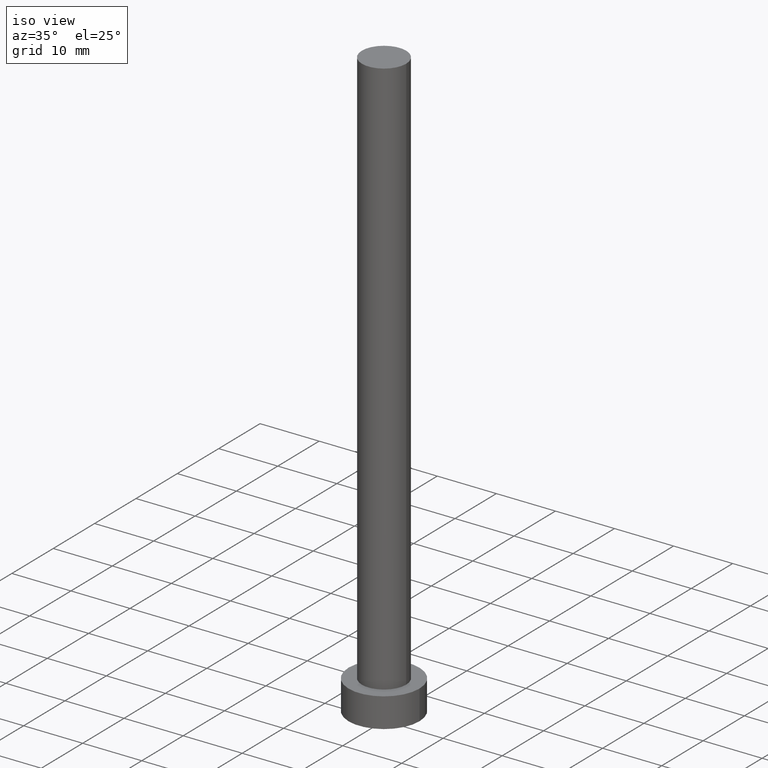
[diagram: clean part render]
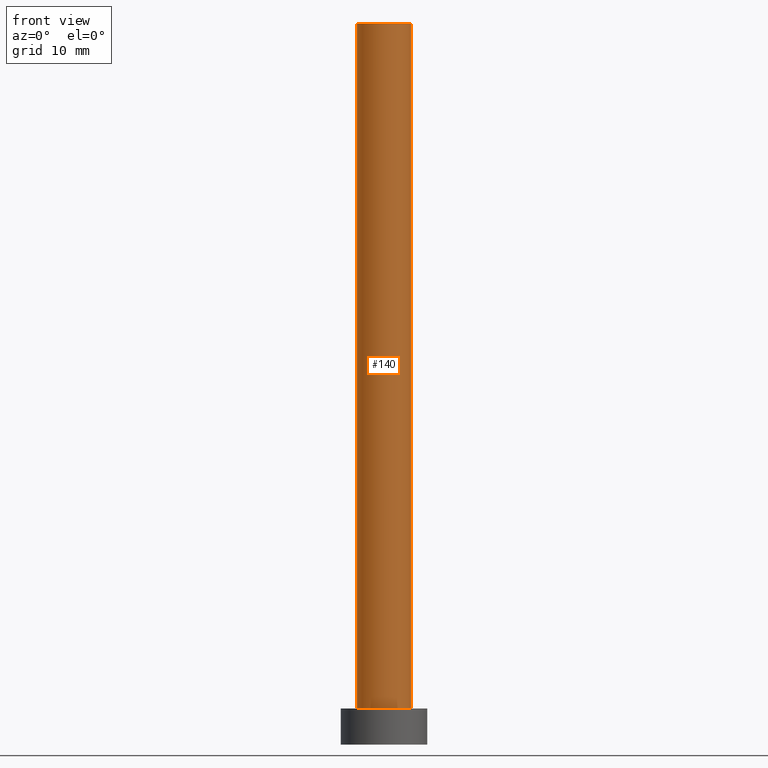
[diagram: tour spotlight — one face highlighted and labeled with its STEP entity id]
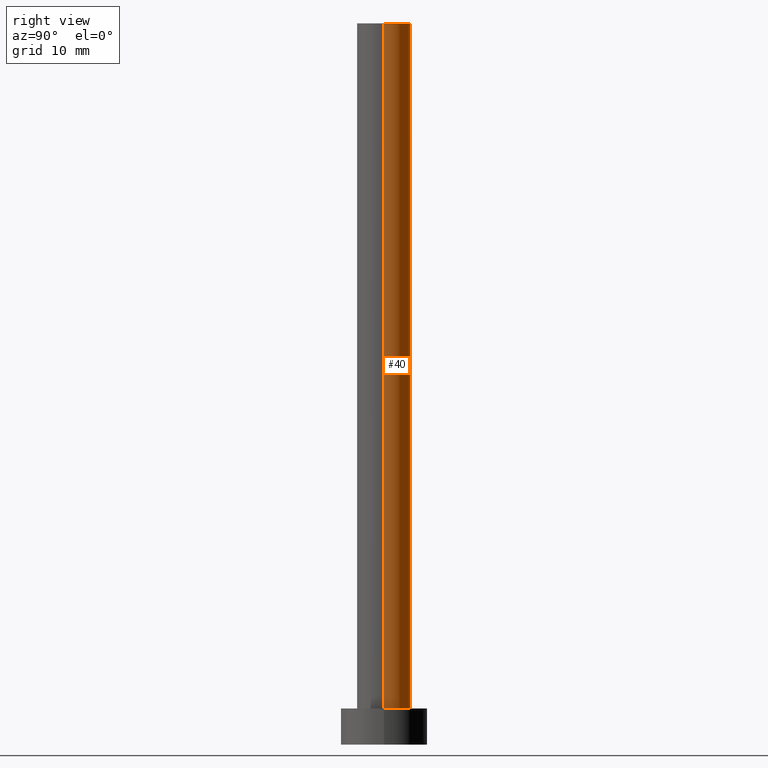
[diagram: tour spotlight — one face highlighted and labeled with its STEP entity id]
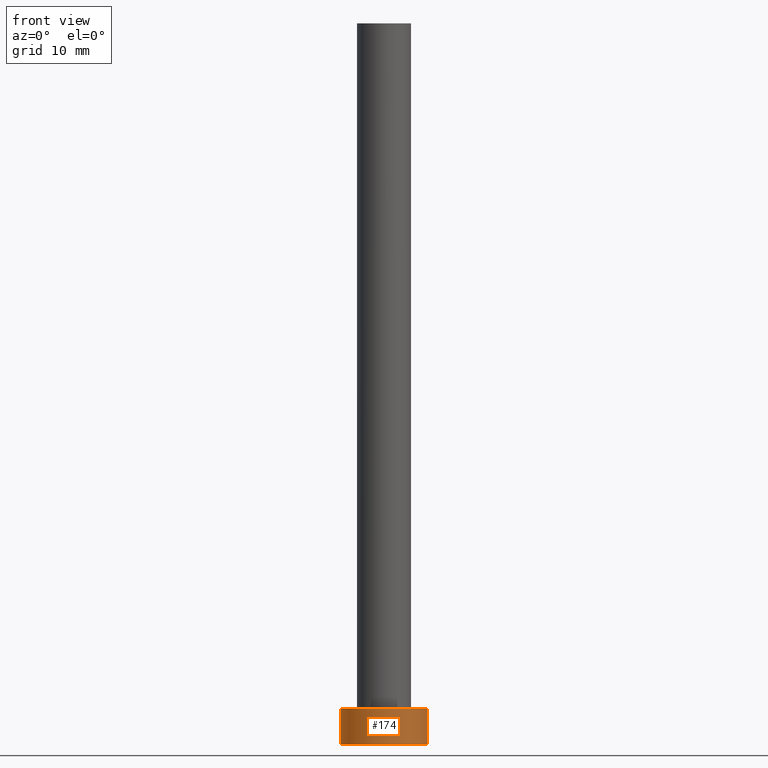
[diagram: tour spotlight — one face highlighted and labeled with its STEP entity id]
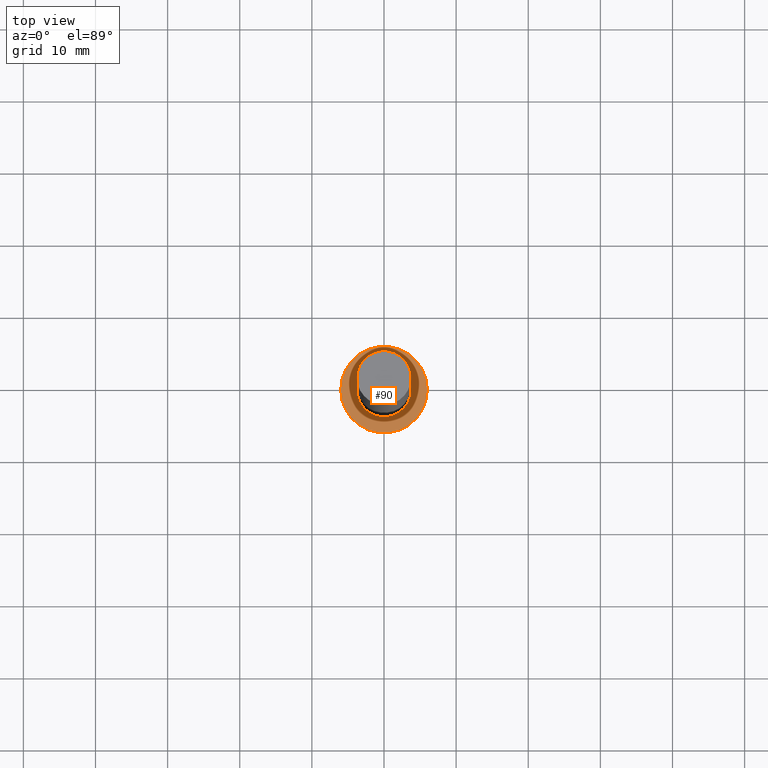
[diagram: tour spotlight — one face highlighted and labeled with its STEP entity id]
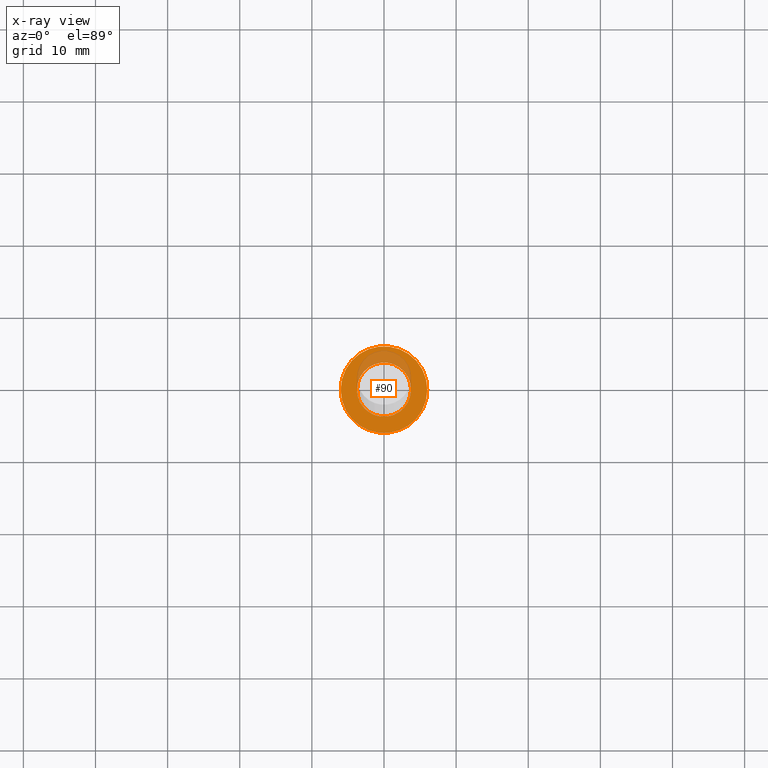
[diagram: x-ray of the same camera — body ghosted, this tour face saturated]
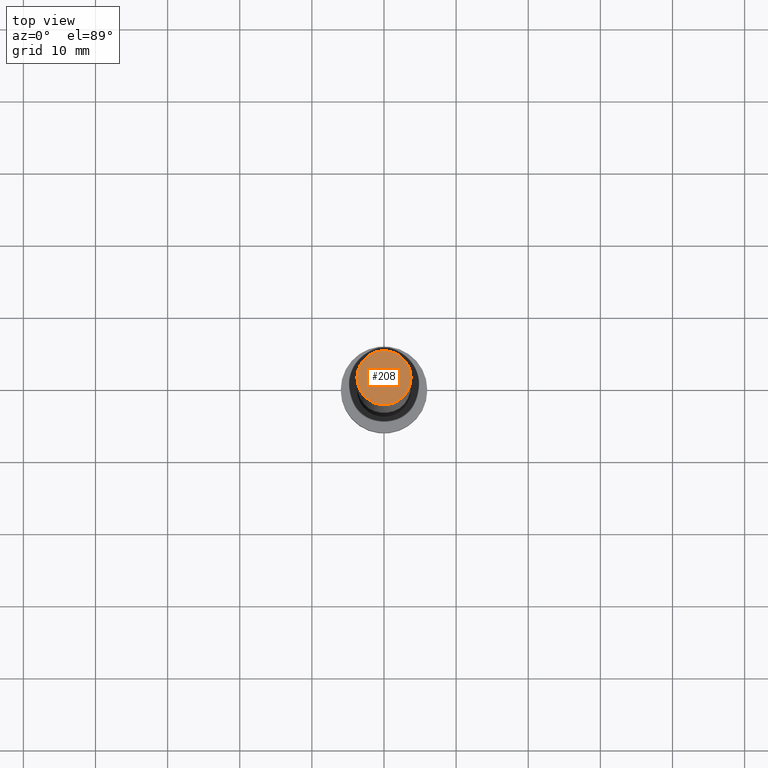
[diagram: tour spotlight — one face highlighted and labeled with its STEP entity id]
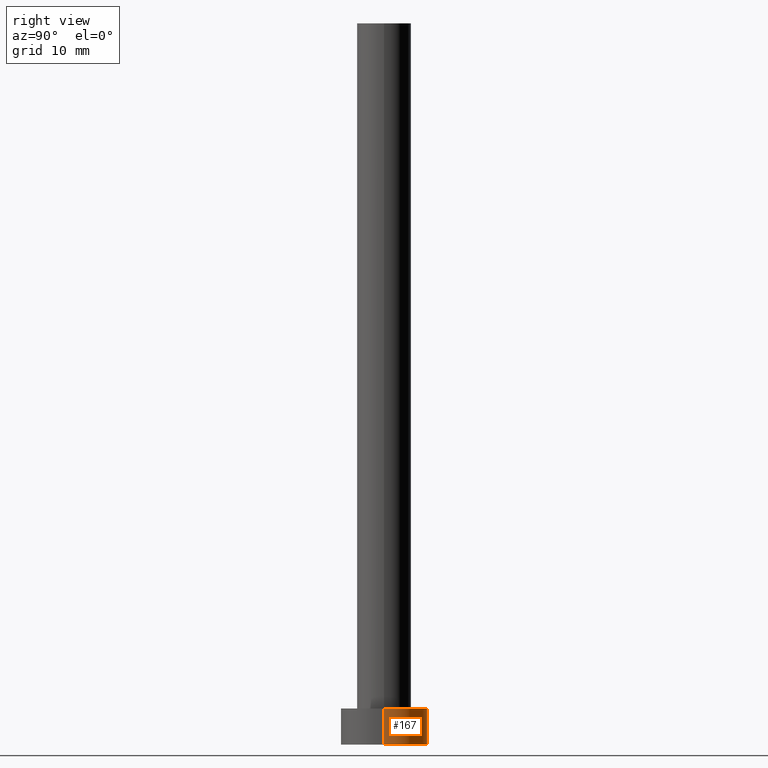
[diagram: tour spotlight — one face highlighted and labeled with its STEP entity id]
A machine part: a face-by-face anatomy tour. The part has 7 B-rep faces; the first image is the clean iso view, then the 6 largest visible faces are spotlighted one at a time (largest first), each with its STEP entity span.

Face 1 — front view, entity #140. In plain terms, the highlighted cylindrical surface (edge-blend (fillet) strip) has radius 3.75 mm, axis along (-0, -0, -1).
Definition (entity closure, byte-faithful):
#6 = ORIENTED_EDGE ( 'NONE', *, *, #194, .F. ) ;
#7 = VECTOR ( 'NONE', #76, 1000.000000000000000 ) ;
#11 = AXIS2_PLACEMENT_3D ( 'NONE', #213, #215, #95 ) ;
#15 = AXIS2_PLACEMENT_3D ( 'NONE', #54, #25, #37 ) ;
#16 = CARTESIAN_POINT ( 'NONE',  ( -3.750000000000000000, 0.000000000000000000, 100.0000000000000000 ) ) ;
#21 = CARTESIAN_POINT ( 'NONE',  ( 3.750000000000000000, 4.592425496802573972E-16, 100.0000000000000000 ) ) ;
#22 = FACE_OUTER_BOUND ( 'NONE', #181, .T. ) ;
#24 = CIRCLE ( 'NONE', #15, 3.750000000000000000 ) ;
#25 = DIRECTION ( 'NONE',  ( 0.000000000000000000, 0.000000000000000000, 1.000000000000000000 ) ) ;
#37 = DIRECTION ( 'NONE',  ( 1.000000000000000000, 0.000000000000000000, 0.000000000000000000 ) ) ;
#38 = CARTESIAN_POINT ( 'NONE',  ( -3.750000000000000000, 0.000000000000000000, 5.000000000000000000 ) ) ;
#54 = CARTESIAN_POINT ( 'NONE',  ( 0.000000000000000000, 0.000000000000000000, 5.000000000000000000 ) ) ;
#58 = VERTEX_POINT ( 'NONE', #16 ) ;
#72 = ORIENTED_EDGE ( 'NONE', *, *, #84, .T. ) ;
#75 = LINE ( 'NONE', #93, #7 ) ;
#76 = DIRECTION ( 'NONE',  ( -0.000000000000000000, -0.000000000000000000, -1.000000000000000000 ) ) ;
#84 = EDGE_CURVE ( 'NONE', #239, #219, #24, .T. ) ;
#85 = DIRECTION ( 'NONE',  ( 1.000000000000000000, 0.000000000000000000, 0.000000000000000000 ) ) ;
#92 = CARTESIAN_POINT ( 'NONE',  ( -3.750000000000000000, 0.000000000000000000, 100.0000000000000000 ) ) ;
#93 = CARTESIAN_POINT ( 'NONE',  ( 3.750000000000000000, 4.592425496802573972E-16, 100.0000000000000000 ) ) ;
#95 = DIRECTION ( 'NONE',  ( -1.000000000000000000, 0.000000000000000000, 0.000000000000000000 ) ) ;
#107 = EDGE_CURVE ( 'NONE', #58, #239, #169, .T. ) ;
#116 = CARTESIAN_POINT ( 'NONE',  ( 0.000000000000000000, 0.000000000000000000, 100.0000000000000000 ) ) ;
#140 = ADVANCED_FACE ( 'NONE', ( #22 ), #234, .T. ) ;
#159 = DIRECTION ( 'NONE',  ( -0.000000000000000000, -0.000000000000000000, -1.000000000000000000 ) ) ;
#169 = LINE ( 'NONE', #92, #220 ) ;
#177 = ORIENTED_EDGE ( 'NONE', *, *, #253, .F. ) ;
#181 = EDGE_LOOP ( 'NONE', ( #6, #177, #192, #72 ) ) ;
#184 = VERTEX_POINT ( 'NONE', #21 ) ;
#192 = ORIENTED_EDGE ( 'NONE', *, *, #107, .T. ) ;
#194 = EDGE_CURVE ( 'NONE', #184, #219, #75, .T. ) ;
#198 = DIRECTION ( 'NONE',  ( 0.000000000000000000, 0.000000000000000000, 1.000000000000000000 ) ) ;
#213 = CARTESIAN_POINT ( 'NONE',  ( 0.000000000000000000, 0.000000000000000000, 100.0000000000000000 ) ) ;
#214 = CARTESIAN_POINT ( 'NONE',  ( 3.750000000000000000, 4.592425496802573972E-16, 5.000000000000000000 ) ) ;
#215 = DIRECTION ( 'NONE',  ( -0.000000000000000000, -0.000000000000000000, -1.000000000000000000 ) ) ;
#219 = VERTEX_POINT ( 'NONE', #214 ) ;
#220 = VECTOR ( 'NONE', #159, 1000.000000000000000 ) ;
#226 = CIRCLE ( 'NONE', #237, 3.750000000000000000 ) ;
#234 = CYLINDRICAL_SURFACE ( 'NONE', #11, 3.750000000000000000 ) ;
#237 = AXIS2_PLACEMENT_3D ( 'NONE', #116, #198, #85 ) ;
#239 = VERTEX_POINT ( 'NONE', #38 ) ;
#253 = EDGE_CURVE ( 'NONE', #58, #184, #226, .T. ) ;

Face 2 — right view, entity #40. In plain terms, the highlighted cylindrical surface (edge-blend (fillet) strip) has radius 3.75 mm, axis along (-0, -0, -1).
Definition (entity closure, byte-faithful):
#7 = VECTOR ( 'NONE', #76, 1000.000000000000000 ) ;
#14 = FACE_OUTER_BOUND ( 'NONE', #39, .T. ) ;
#16 = CARTESIAN_POINT ( 'NONE',  ( -3.750000000000000000, 0.000000000000000000, 100.0000000000000000 ) ) ;
#21 = CARTESIAN_POINT ( 'NONE',  ( 3.750000000000000000, 4.592425496802573972E-16, 100.0000000000000000 ) ) ;
#33 = DIRECTION ( 'NONE',  ( 0.000000000000000000, 0.000000000000000000, 1.000000000000000000 ) ) ;
#38 = CARTESIAN_POINT ( 'NONE',  ( -3.750000000000000000, 0.000000000000000000, 5.000000000000000000 ) ) ;
#39 = EDGE_LOOP ( 'NONE', ( #101, #138, #64, #47 ) ) ;
#40 = ADVANCED_FACE ( 'NONE', ( #14 ), #245, .T. ) ;
#47 = ORIENTED_EDGE ( 'NONE', *, *, #107, .F. ) ;
#50 = CARTESIAN_POINT ( 'NONE',  ( 0.000000000000000000, 0.000000000000000000, 100.0000000000000000 ) ) ;
#51 = CARTESIAN_POINT ( 'NONE',  ( 0.000000000000000000, 0.000000000000000000, 100.0000000000000000 ) ) ;
#58 = VERTEX_POINT ( 'NONE', #16 ) ;
#63 = EDGE_CURVE ( 'NONE', #184, #58, #190, .T. ) ;
#64 = ORIENTED_EDGE ( 'NONE', *, *, #109, .T. ) ;
#68 = AXIS2_PLACEMENT_3D ( 'NONE', #197, #131, #211 ) ;
#75 = LINE ( 'NONE', #93, #7 ) ;
#76 = DIRECTION ( 'NONE',  ( -0.000000000000000000, -0.000000000000000000, -1.000000000000000000 ) ) ;
#92 = CARTESIAN_POINT ( 'NONE',  ( -3.750000000000000000, 0.000000000000000000, 100.0000000000000000 ) ) ;
#93 = CARTESIAN_POINT ( 'NONE',  ( 3.750000000000000000, 4.592425496802573972E-16, 100.0000000000000000 ) ) ;
#101 = ORIENTED_EDGE ( 'NONE', *, *, #63, .F. ) ;
#107 = EDGE_CURVE ( 'NONE', #58, #239, #169, .T. ) ;
#109 = EDGE_CURVE ( 'NONE', #219, #239, #110, .T. ) ;
#110 = CIRCLE ( 'NONE', #68, 3.750000000000000000 ) ;
#124 = DIRECTION ( 'NONE',  ( -0.000000000000000000, -0.000000000000000000, -1.000000000000000000 ) ) ;
#128 = AXIS2_PLACEMENT_3D ( 'NONE', #50, #33, #248 ) ;
#130 = DIRECTION ( 'NONE',  ( -1.000000000000000000, 0.000000000000000000, 0.000000000000000000 ) ) ;
#131 = DIRECTION ( 'NONE',  ( 0.000000000000000000, 0.000000000000000000, 1.000000000000000000 ) ) ;
#133 = AXIS2_PLACEMENT_3D ( 'NONE', #51, #124, #130 ) ;
#138 = ORIENTED_EDGE ( 'NONE', *, *, #194, .T. ) ;
#159 = DIRECTION ( 'NONE',  ( -0.000000000000000000, -0.000000000000000000, -1.000000000000000000 ) ) ;
#169 = LINE ( 'NONE', #92, #220 ) ;
#184 = VERTEX_POINT ( 'NONE', #21 ) ;
#190 = CIRCLE ( 'NONE', #128, 3.750000000000000000 ) ;
#194 = EDGE_CURVE ( 'NONE', #184, #219, #75, .T. ) ;
#197 = CARTESIAN_POINT ( 'NONE',  ( 0.000000000000000000, 0.000000000000000000, 5.000000000000000000 ) ) ;
#211 = DIRECTION ( 'NONE',  ( 1.000000000000000000, 0.000000000000000000, 0.000000000000000000 ) ) ;
#214 = CARTESIAN_POINT ( 'NONE',  ( 3.750000000000000000, 4.592425496802573972E-16, 5.000000000000000000 ) ) ;
#219 = VERTEX_POINT ( 'NONE', #214 ) ;
#220 = VECTOR ( 'NONE', #159, 1000.000000000000000 ) ;
#239 = VERTEX_POINT ( 'NONE', #38 ) ;
#245 = CYLINDRICAL_SURFACE ( 'NONE', #133, 3.750000000000000000 ) ;
#248 = DIRECTION ( 'NONE',  ( 1.000000000000000000, 0.000000000000000000, 0.000000000000000000 ) ) ;

Face 3 — front view, entity #174. In plain terms, the highlighted cylindrical surface (partial cylindrical patch) has radius 6 mm, axis along (-0, -0, -1).
Definition (entity closure, byte-faithful):
#1 = LINE ( 'NONE', #251, #250 ) ;
#20 = CARTESIAN_POINT ( 'NONE',  ( 6.000000000000000888, 7.347880794884120722E-16, 5.000000000000000000 ) ) ;
#27 = VERTEX_POINT ( 'NONE', #49 ) ;
#36 = CYLINDRICAL_SURFACE ( 'NONE', #201, 6.000000000000000888 ) ;
#43 = VERTEX_POINT ( 'NONE', #207 ) ;
#44 = EDGE_CURVE ( 'NONE', #83, #27, #244, .T. ) ;
#49 = CARTESIAN_POINT ( 'NONE',  ( 6.000000000000000888, 7.347880794884120722E-16, 0.000000000000000000 ) ) ;
#57 = CARTESIAN_POINT ( 'NONE',  ( -6.000000000000000888, 0.000000000000000000, 0.000000000000000000 ) ) ;
#62 = ORIENTED_EDGE ( 'NONE', *, *, #44, .T. ) ;
#73 = EDGE_CURVE ( 'NONE', #43, #83, #1, .T. ) ;
#81 = ORIENTED_EDGE ( 'NONE', *, *, #73, .T. ) ;
#83 = VERTEX_POINT ( 'NONE', #57 ) ;
#91 = AXIS2_PLACEMENT_3D ( 'NONE', #153, #209, #246 ) ;
#98 = CARTESIAN_POINT ( 'NONE',  ( 0.000000000000000000, 0.000000000000000000, 5.000000000000000000 ) ) ;
#104 = EDGE_LOOP ( 'NONE', ( #142, #199, #81, #62 ) ) ;
#106 = VECTOR ( 'NONE', #231, 1000.000000000000000 ) ;
#112 = CARTESIAN_POINT ( 'NONE',  ( 6.000000000000000888, 7.347880794884120722E-16, 5.000000000000000000 ) ) ;
#115 = DIRECTION ( 'NONE',  ( 1.000000000000000000, 0.000000000000000000, 0.000000000000000000 ) ) ;
#118 = CIRCLE ( 'NONE', #157, 6.000000000000000888 ) ;
#132 = DIRECTION ( 'NONE',  ( -0.000000000000000000, -0.000000000000000000, -1.000000000000000000 ) ) ;
#142 = ORIENTED_EDGE ( 'NONE', *, *, #152, .F. ) ;
#152 = EDGE_CURVE ( 'NONE', #175, #27, #230, .T. ) ;
#153 = CARTESIAN_POINT ( 'NONE',  ( 0.000000000000000000, 0.000000000000000000, 0.000000000000000000 ) ) ;
#157 = AXIS2_PLACEMENT_3D ( 'NONE', #195, #254, #115 ) ;
#158 = EDGE_CURVE ( 'NONE', #43, #175, #118, .T. ) ;
#160 = FACE_OUTER_BOUND ( 'NONE', #104, .T. ) ;
#174 = ADVANCED_FACE ( 'NONE', ( #160 ), #36, .T. ) ;
#175 = VERTEX_POINT ( 'NONE', #20 ) ;
#193 = DIRECTION ( 'NONE',  ( -0.000000000000000000, -0.000000000000000000, -1.000000000000000000 ) ) ;
#195 = CARTESIAN_POINT ( 'NONE',  ( 0.000000000000000000, 0.000000000000000000, 5.000000000000000000 ) ) ;
#199 = ORIENTED_EDGE ( 'NONE', *, *, #158, .F. ) ;
#201 = AXIS2_PLACEMENT_3D ( 'NONE', #98, #193, #252 ) ;
#207 = CARTESIAN_POINT ( 'NONE',  ( -6.000000000000000888, 0.000000000000000000, 5.000000000000000000 ) ) ;
#209 = DIRECTION ( 'NONE',  ( 0.000000000000000000, 0.000000000000000000, 1.000000000000000000 ) ) ;
#230 = LINE ( 'NONE', #112, #106 ) ;
#231 = DIRECTION ( 'NONE',  ( -0.000000000000000000, -0.000000000000000000, -1.000000000000000000 ) ) ;
#244 = CIRCLE ( 'NONE', #91, 6.000000000000000888 ) ;
#246 = DIRECTION ( 'NONE',  ( 1.000000000000000000, 0.000000000000000000, 0.000000000000000000 ) ) ;
#250 = VECTOR ( 'NONE', #132, 1000.000000000000000 ) ;
#251 = CARTESIAN_POINT ( 'NONE',  ( -6.000000000000000888, 0.000000000000000000, 5.000000000000000000 ) ) ;
#252 = DIRECTION ( 'NONE',  ( -1.000000000000000000, 0.000000000000000000, 0.000000000000000000 ) ) ;
#254 = DIRECTION ( 'NONE',  ( 0.000000000000000000, 0.000000000000000000, 1.000000000000000000 ) ) ;

Face 4 — top view, entity #90. An x-ray twin of the same camera follows (body ghosted, this face saturated) — the face is partly hidden behind the body. In plain terms, the highlighted planar face has unit normal (0, 0, 1).
Definition (entity closure, byte-faithful):
#4 = ORIENTED_EDGE ( 'NONE', *, *, #158, .T. ) ;
#12 = EDGE_CURVE ( 'NONE', #175, #43, #150, .T. ) ;
#15 = AXIS2_PLACEMENT_3D ( 'NONE', #54, #25, #37 ) ;
#18 = DIRECTION ( 'NONE',  ( 0.000000000000000000, 0.000000000000000000, 1.000000000000000000 ) ) ;
#20 = CARTESIAN_POINT ( 'NONE',  ( 6.000000000000000888, 7.347880794884120722E-16, 5.000000000000000000 ) ) ;
#24 = CIRCLE ( 'NONE', #15, 3.750000000000000000 ) ;
#25 = DIRECTION ( 'NONE',  ( 0.000000000000000000, 0.000000000000000000, 1.000000000000000000 ) ) ;
#29 = ORIENTED_EDGE ( 'NONE', *, *, #109, .F. ) ;
#37 = DIRECTION ( 'NONE',  ( 1.000000000000000000, 0.000000000000000000, 0.000000000000000000 ) ) ;
#38 = CARTESIAN_POINT ( 'NONE',  ( -3.750000000000000000, 0.000000000000000000, 5.000000000000000000 ) ) ;
#43 = VERTEX_POINT ( 'NONE', #207 ) ;
#53 = DIRECTION ( 'NONE',  ( 0.000000000000000000, 0.000000000000000000, 1.000000000000000000 ) ) ;
#54 = CARTESIAN_POINT ( 'NONE',  ( 0.000000000000000000, 0.000000000000000000, 5.000000000000000000 ) ) ;
#68 = AXIS2_PLACEMENT_3D ( 'NONE', #197, #131, #211 ) ;
#74 = FACE_OUTER_BOUND ( 'NONE', #125, .T. ) ;
#77 = AXIS2_PLACEMENT_3D ( 'NONE', #117, #53, #228 ) ;
#79 = PLANE ( 'NONE',  #77 ) ;
#84 = EDGE_CURVE ( 'NONE', #239, #219, #24, .T. ) ;
#90 = ADVANCED_FACE ( 'NONE', ( #173, #74 ), #79, .T. ) ;
#99 = ORIENTED_EDGE ( 'NONE', *, *, #84, .F. ) ;
#109 = EDGE_CURVE ( 'NONE', #219, #239, #110, .T. ) ;
#110 = CIRCLE ( 'NONE', #68, 3.750000000000000000 ) ;
#115 = DIRECTION ( 'NONE',  ( 1.000000000000000000, 0.000000000000000000, 0.000000000000000000 ) ) ;
#117 = CARTESIAN_POINT ( 'NONE',  ( 0.000000000000000000, 0.000000000000000000, 5.000000000000000000 ) ) ;
#118 = CIRCLE ( 'NONE', #157, 6.000000000000000888 ) ;
#125 = EDGE_LOOP ( 'NONE', ( #4, #217 ) ) ;
#131 = DIRECTION ( 'NONE',  ( 0.000000000000000000, 0.000000000000000000, 1.000000000000000000 ) ) ;
#139 = AXIS2_PLACEMENT_3D ( 'NONE', #187, #18, #225 ) ;
#150 = CIRCLE ( 'NONE', #139, 6.000000000000000888 ) ;
#157 = AXIS2_PLACEMENT_3D ( 'NONE', #195, #254, #115 ) ;
#158 = EDGE_CURVE ( 'NONE', #43, #175, #118, .T. ) ;
#173 = FACE_BOUND ( 'NONE', #236, .T. ) ;
#175 = VERTEX_POINT ( 'NONE', #20 ) ;
#187 = CARTESIAN_POINT ( 'NONE',  ( 0.000000000000000000, 0.000000000000000000, 5.000000000000000000 ) ) ;
#195 = CARTESIAN_POINT ( 'NONE',  ( 0.000000000000000000, 0.000000000000000000, 5.000000000000000000 ) ) ;
#197 = CARTESIAN_POINT ( 'NONE',  ( 0.000000000000000000, 0.000000000000000000, 5.000000000000000000 ) ) ;
#207 = CARTESIAN_POINT ( 'NONE',  ( -6.000000000000000888, 0.000000000000000000, 5.000000000000000000 ) ) ;
#211 = DIRECTION ( 'NONE',  ( 1.000000000000000000, 0.000000000000000000, 0.000000000000000000 ) ) ;
#214 = CARTESIAN_POINT ( 'NONE',  ( 3.750000000000000000, 4.592425496802573972E-16, 5.000000000000000000 ) ) ;
#217 = ORIENTED_EDGE ( 'NONE', *, *, #12, .T. ) ;
#219 = VERTEX_POINT ( 'NONE', #214 ) ;
#225 = DIRECTION ( 'NONE',  ( 1.000000000000000000, 0.000000000000000000, 0.000000000000000000 ) ) ;
#228 = DIRECTION ( 'NONE',  ( 1.000000000000000000, 0.000000000000000000, -0.000000000000000000 ) ) ;
#236 = EDGE_LOOP ( 'NONE', ( #99, #29 ) ) ;
#239 = VERTEX_POINT ( 'NONE', #38 ) ;
#254 = DIRECTION ( 'NONE',  ( 0.000000000000000000, 0.000000000000000000, 1.000000000000000000 ) ) ;

Face 5 — top view, entity #208. In plain terms, the highlighted planar face has unit normal (0, 0, 1).
Definition (entity closure, byte-faithful):
#16 = CARTESIAN_POINT ( 'NONE',  ( -3.750000000000000000, 0.000000000000000000, 100.0000000000000000 ) ) ;
#21 = CARTESIAN_POINT ( 'NONE',  ( 3.750000000000000000, 4.592425496802573972E-16, 100.0000000000000000 ) ) ;
#23 = CARTESIAN_POINT ( 'NONE',  ( 0.000000000000000000, 0.000000000000000000, 100.0000000000000000 ) ) ;
#30 = ORIENTED_EDGE ( 'NONE', *, *, #63, .T. ) ;
#33 = DIRECTION ( 'NONE',  ( 0.000000000000000000, 0.000000000000000000, 1.000000000000000000 ) ) ;
#50 = CARTESIAN_POINT ( 'NONE',  ( 0.000000000000000000, 0.000000000000000000, 100.0000000000000000 ) ) ;
#58 = VERTEX_POINT ( 'NONE', #16 ) ;
#63 = EDGE_CURVE ( 'NONE', #184, #58, #190, .T. ) ;
#67 = ORIENTED_EDGE ( 'NONE', *, *, #253, .T. ) ;
#85 = DIRECTION ( 'NONE',  ( 1.000000000000000000, 0.000000000000000000, 0.000000000000000000 ) ) ;
#113 = FACE_OUTER_BOUND ( 'NONE', #123, .T. ) ;
#116 = CARTESIAN_POINT ( 'NONE',  ( 0.000000000000000000, 0.000000000000000000, 100.0000000000000000 ) ) ;
#123 = EDGE_LOOP ( 'NONE', ( #67, #30 ) ) ;
#128 = AXIS2_PLACEMENT_3D ( 'NONE', #50, #33, #248 ) ;
#136 = DIRECTION ( 'NONE',  ( 1.000000000000000000, 0.000000000000000000, -0.000000000000000000 ) ) ;
#171 = PLANE ( 'NONE',  #242 ) ;
#184 = VERTEX_POINT ( 'NONE', #21 ) ;
#190 = CIRCLE ( 'NONE', #128, 3.750000000000000000 ) ;
#198 = DIRECTION ( 'NONE',  ( 0.000000000000000000, 0.000000000000000000, 1.000000000000000000 ) ) ;
#208 = ADVANCED_FACE ( 'NONE', ( #113 ), #171, .T. ) ;
#226 = CIRCLE ( 'NONE', #237, 3.750000000000000000 ) ;
#233 = DIRECTION ( 'NONE',  ( 0.000000000000000000, 0.000000000000000000, 1.000000000000000000 ) ) ;
#237 = AXIS2_PLACEMENT_3D ( 'NONE', #116, #198, #85 ) ;
#242 = AXIS2_PLACEMENT_3D ( 'NONE', #23, #233, #136 ) ;
#248 = DIRECTION ( 'NONE',  ( 1.000000000000000000, 0.000000000000000000, 0.000000000000000000 ) ) ;
#253 = EDGE_CURVE ( 'NONE', #58, #184, #226, .T. ) ;

Face 6 — right view, entity #167. In plain terms, the highlighted cylindrical surface (partial cylindrical patch) has radius 6 mm, axis along (-0, -0, -1).
Definition (entity closure, byte-faithful):
#1 = LINE ( 'NONE', #251, #250 ) ;
#12 = EDGE_CURVE ( 'NONE', #175, #43, #150, .T. ) ;
#18 = DIRECTION ( 'NONE',  ( 0.000000000000000000, 0.000000000000000000, 1.000000000000000000 ) ) ;
#20 = CARTESIAN_POINT ( 'NONE',  ( 6.000000000000000888, 7.347880794884120722E-16, 5.000000000000000000 ) ) ;
#27 = VERTEX_POINT ( 'NONE', #49 ) ;
#35 = CARTESIAN_POINT ( 'NONE',  ( 0.000000000000000000, 0.000000000000000000, 0.000000000000000000 ) ) ;
#41 = FACE_OUTER_BOUND ( 'NONE', #87, .T. ) ;
#43 = VERTEX_POINT ( 'NONE', #207 ) ;
#49 = CARTESIAN_POINT ( 'NONE',  ( 6.000000000000000888, 7.347880794884120722E-16, 0.000000000000000000 ) ) ;
#57 = CARTESIAN_POINT ( 'NONE',  ( -6.000000000000000888, 0.000000000000000000, 0.000000000000000000 ) ) ;
#73 = EDGE_CURVE ( 'NONE', #43, #83, #1, .T. ) ;
#78 = DIRECTION ( 'NONE',  ( -0.000000000000000000, -0.000000000000000000, -1.000000000000000000 ) ) ;
#83 = VERTEX_POINT ( 'NONE', #57 ) ;
#86 = CIRCLE ( 'NONE', #227, 6.000000000000000888 ) ;
#87 = EDGE_LOOP ( 'NONE', ( #108, #186, #240, #154 ) ) ;
#96 = DIRECTION ( 'NONE',  ( 1.000000000000000000, 0.000000000000000000, 0.000000000000000000 ) ) ;
#106 = VECTOR ( 'NONE', #231, 1000.000000000000000 ) ;
#108 = ORIENTED_EDGE ( 'NONE', *, *, #12, .F. ) ;
#112 = CARTESIAN_POINT ( 'NONE',  ( 6.000000000000000888, 7.347880794884120722E-16, 5.000000000000000000 ) ) ;
#132 = DIRECTION ( 'NONE',  ( -0.000000000000000000, -0.000000000000000000, -1.000000000000000000 ) ) ;
#134 = EDGE_CURVE ( 'NONE', #27, #83, #86, .T. ) ;
#137 = DIRECTION ( 'NONE',  ( 0.000000000000000000, 0.000000000000000000, 1.000000000000000000 ) ) ;
#139 = AXIS2_PLACEMENT_3D ( 'NONE', #187, #18, #225 ) ;
#144 = AXIS2_PLACEMENT_3D ( 'NONE', #161, #78, #212 ) ;
#150 = CIRCLE ( 'NONE', #139, 6.000000000000000888 ) ;
#152 = EDGE_CURVE ( 'NONE', #175, #27, #230, .T. ) ;
#154 = ORIENTED_EDGE ( 'NONE', *, *, #73, .F. ) ;
#161 = CARTESIAN_POINT ( 'NONE',  ( 0.000000000000000000, 0.000000000000000000, 5.000000000000000000 ) ) ;
#167 = ADVANCED_FACE ( 'NONE', ( #41 ), #255, .T. ) ;
#175 = VERTEX_POINT ( 'NONE', #20 ) ;
#186 = ORIENTED_EDGE ( 'NONE', *, *, #152, .T. ) ;
#187 = CARTESIAN_POINT ( 'NONE',  ( 0.000000000000000000, 0.000000000000000000, 5.000000000000000000 ) ) ;
#207 = CARTESIAN_POINT ( 'NONE',  ( -6.000000000000000888, 0.000000000000000000, 5.000000000000000000 ) ) ;
#212 = DIRECTION ( 'NONE',  ( -1.000000000000000000, 0.000000000000000000, 0.000000000000000000 ) ) ;
#225 = DIRECTION ( 'NONE',  ( 1.000000000000000000, 0.000000000000000000, 0.000000000000000000 ) ) ;
#227 = AXIS2_PLACEMENT_3D ( 'NONE', #35, #137, #96 ) ;
#230 = LINE ( 'NONE', #112, #106 ) ;
#231 = DIRECTION ( 'NONE',  ( -0.000000000000000000, -0.000000000000000000, -1.000000000000000000 ) ) ;
#240 = ORIENTED_EDGE ( 'NONE', *, *, #134, .T. ) ;
#250 = VECTOR ( 'NONE', #132, 1000.000000000000000 ) ;
#251 = CARTESIAN_POINT ( 'NONE',  ( -6.000000000000000888, 0.000000000000000000, 5.000000000000000000 ) ) ;
#255 = CYLINDRICAL_SURFACE ( 'NONE', #144, 6.000000000000000888 ) ;